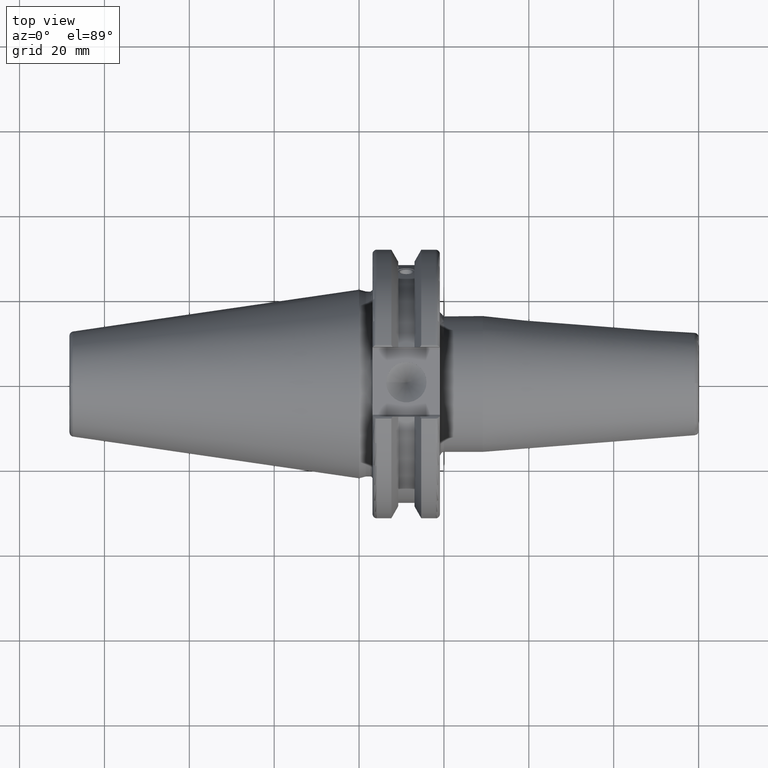
[diagram: clean part render]
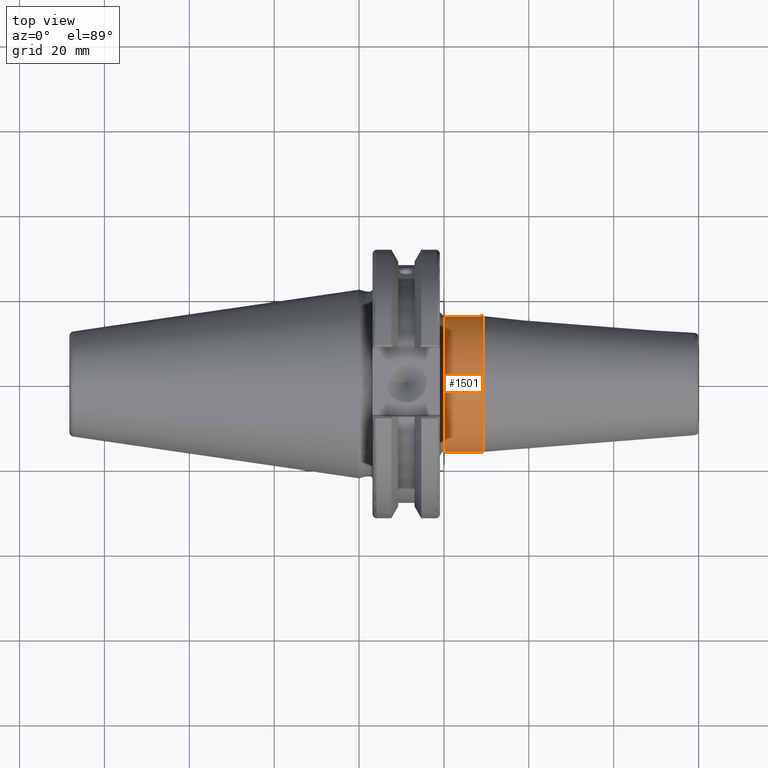
[diagram: same view with one face highlighted and labeled with its STEP entity id]
A machine part, top view. The second image highlights one B-rep face of the part: STEP entity #1501.
In plain terms, the highlighted cylindrical surface (bore or boss wall) has radius 16 mm, axis along (1, 0, 0).
Its self-contained STEP definition (entity closure, byte-faithful):
#80=CYLINDRICAL_SURFACE('',#1626,16.);
#110=LINE('',#2283,#204);
#204=VECTOR('',#1834,16.);
#368=FACE_OUTER_BOUND('',#457,.T.);
#457=EDGE_LOOP('',(#1045,#1046,#1047,#1048,#1049));
#559=CIRCLE('',#1614,16.);
#564=CIRCLE('',#1622,16.);
#567=CIRCLE('',#1625,16.);
#634=VERTEX_POINT('',#2261);
#638=VERTEX_POINT('',#2275);
#639=VERTEX_POINT('',#2276);
#790=EDGE_CURVE('',#634,#634,#559,.T.);
#796=EDGE_CURVE('',#638,#639,#564,.T.);
#799=EDGE_CURVE('',#639,#638,#567,.T.);
#800=EDGE_CURVE('',#634,#638,#110,.T.);
#1045=ORIENTED_EDGE('',*,*,#790,.F.);
#1046=ORIENTED_EDGE('',*,*,#800,.T.);
#1047=ORIENTED_EDGE('',*,*,#799,.F.);
#1048=ORIENTED_EDGE('',*,*,#796,.F.);
#1049=ORIENTED_EDGE('',*,*,#800,.F.);
#1501=ADVANCED_FACE('',(#368),#80,.T.);
#1614=AXIS2_PLACEMENT_3D('',#2263,#1807,#1808);
#1622=AXIS2_PLACEMENT_3D('',#2277,#1824,#1825);
#1625=AXIS2_PLACEMENT_3D('',#2281,#1830,#1831);
#1626=AXIS2_PLACEMENT_3D('',#2282,#1832,#1833);
#1807=DIRECTION('center_axis',(1.,0.,0.));
#1808=DIRECTION('ref_axis',(0.,0.,-1.));
#1824=DIRECTION('center_axis',(-1.,0.,0.));
#1825=DIRECTION('ref_axis',(0.,-1.,-1.22464679914735E-16));
#1830=DIRECTION('center_axis',(-1.,0.,0.));
#1831=DIRECTION('ref_axis',(0.,-1.,-1.22464679914735E-16));
#1832=DIRECTION('center_axis',(1.,0.,0.));
#1833=DIRECTION('ref_axis',(0.,1.,0.));
#1834=DIRECTION('',(-1.,0.,0.));
#2261=CARTESIAN_POINT('',(29.1751810553012,-16.,-1.95943487863577E-15));
#2263=CARTESIAN_POINT('Origin',(29.1751810553012,0.,0.));
#2275=CARTESIAN_POINT('',(20.05,-16.,-1.95943487863577E-15));
#2276=CARTESIAN_POINT('',(20.05,-1.95943487863577E-15,-16.));
#2277=CARTESIAN_POINT('Origin',(20.05,0.,0.));
#2281=CARTESIAN_POINT('Origin',(20.05,0.,0.));
#2282=CARTESIAN_POINT('Origin',(24.1125905276506,0.,0.));
#2283=CARTESIAN_POINT('',(24.1125905276506,-16.,-1.95943487863577E-15));